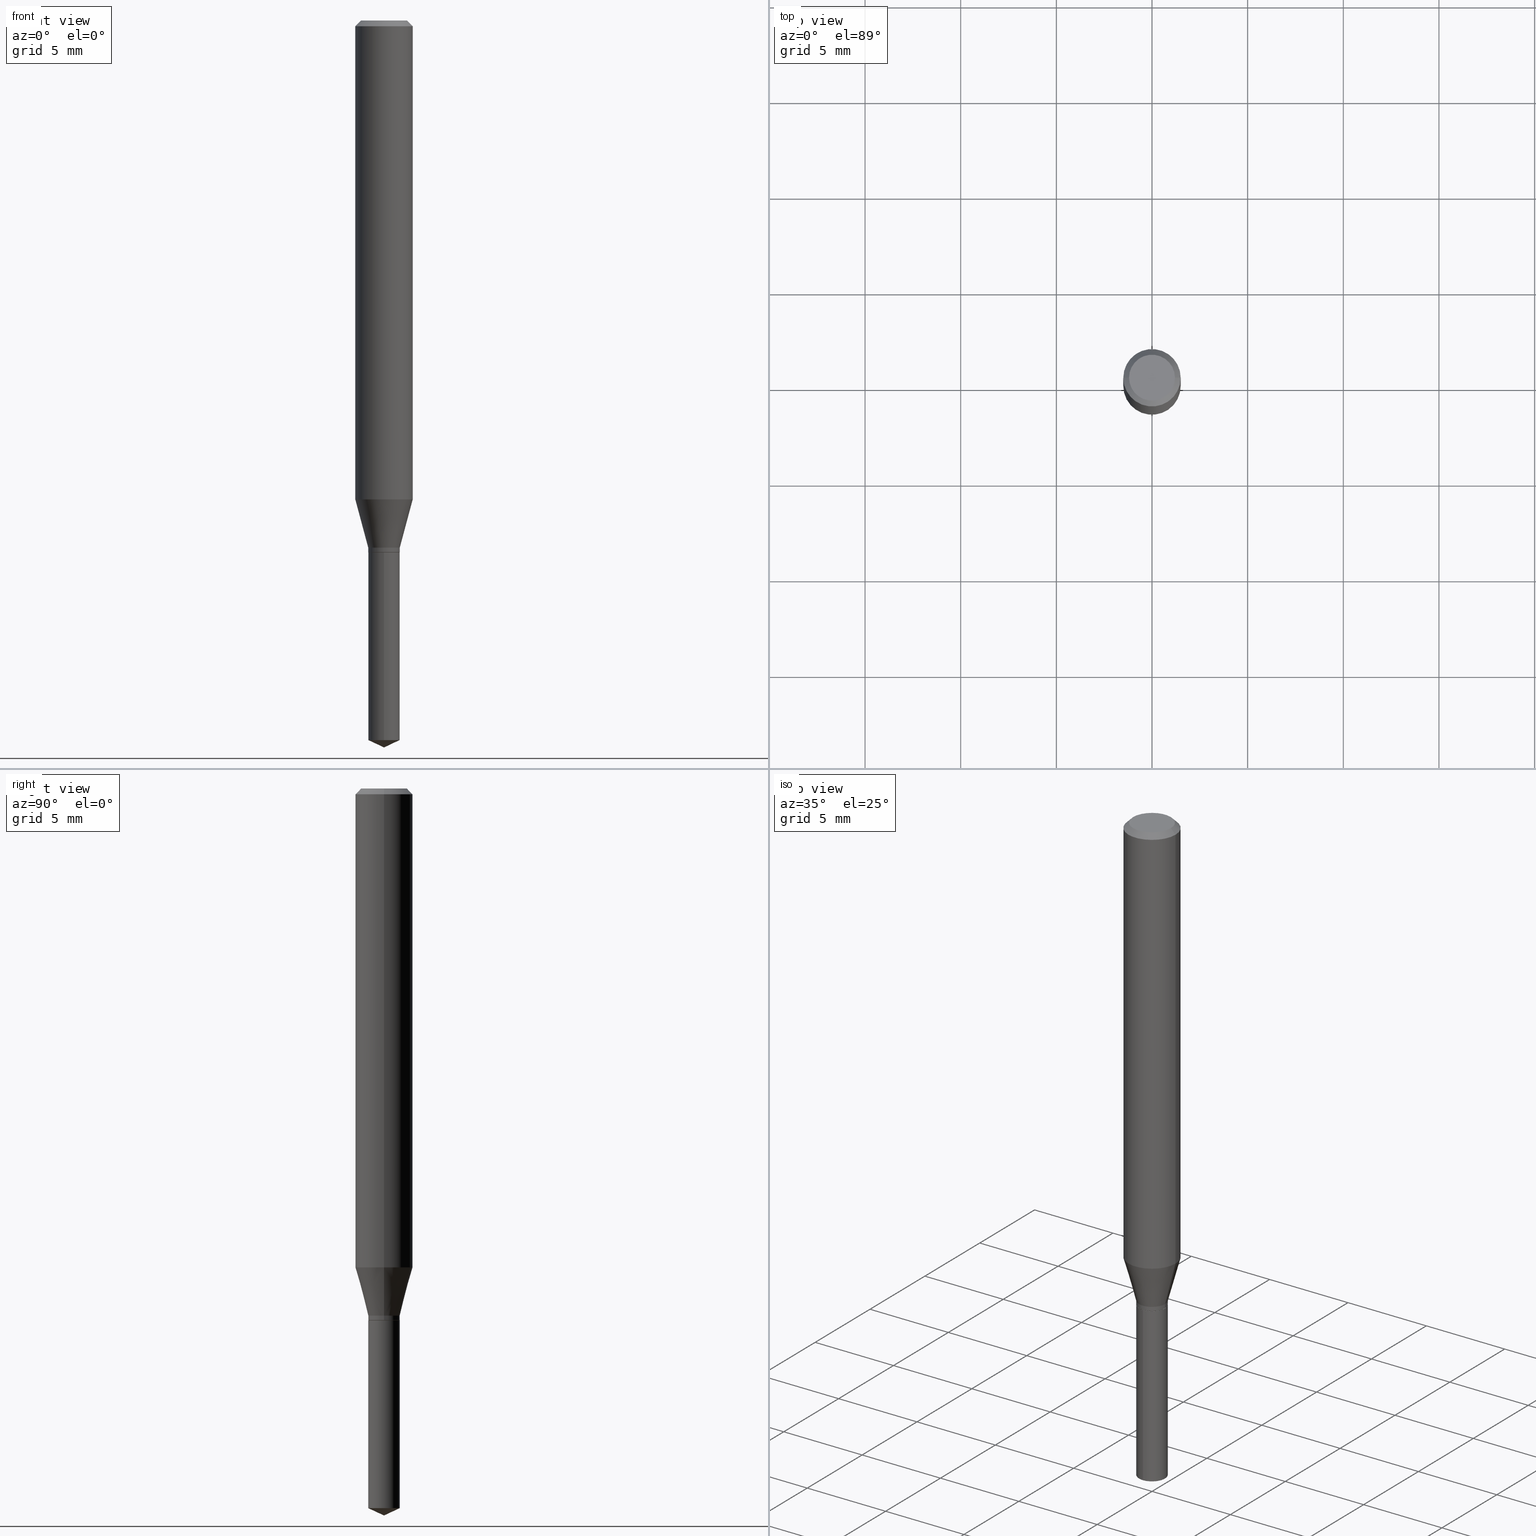
[diagram: canonical four-view strip — front | top / right | iso, engineering-drawing reading convention]
A machine part, canonical four-view strip (front | top / right | iso — engineering-drawing reading convention). The complete STEP part file that produces these views, byte-faithful:
ISO-10303-21;
HEADER;
FILE_DESCRIPTION (( 'STEP AP203' ),
    '1' );
FILE_NAME ('08355.STEP',
    '2024-04-24T14:33:10',
    ( '' ),
    ( '' ),
    'SwSTEP 2.0',
    'SolidWorks 2023',
    '' );
FILE_SCHEMA (( 'CONFIG_CONTROL_DESIGN' ));
ENDSEC;

DATA;
#1 = PERSON_AND_ORGANIZATION_ROLE ( 'design_owner' ) ;
#2 = DIRECTION ( 'NONE',  ( 1.000000000000000000, -6.982962677686266711E-15, 4.876185090822587894E-29 ) ) ;
#3 = CARTESIAN_POINT ( 'NONE',  ( 0.03249999999999998723, -4.014156095267963078E-15, -1.084699999999999998 ) ) ;
#4 = CARTESIAN_POINT ( 'NONE',  ( 3.621579269350513779E-29, -5.170728402142678552E-15, -1.480945001109962522 ) ) ;
#5 = CARTESIAN_POINT ( 'NONE',  ( 0.05905000000000006077, -4.123439461173744764E-16, 2.879382386107503023E-30 ) ) ;
#6 = PLANE ( 'NONE',  #231 ) ;
#7 = EDGE_CURVE ( 'NONE', #287, #37, #126, .T. ) ;
#8 = ORIENTED_EDGE ( 'NONE', *, *, #466, .T. ) ;
#9 = DIRECTION ( 'NONE',  ( -2.445468806185136877E-29, 3.491481338843145188E-15, 1.000000000000000000 ) ) ;
#10 = FACE_OUTER_BOUND ( 'NONE', #426, .T. ) ;
#11 = APPROVAL ( #402, 'UNSPECIFIED' ) ;
#12 = APPROVAL_STATUS ( 'not_yet_approved' ) ;
#13 = CIRCLE ( 'NONE', #406, 0.05905000000000011628 ) ;
#14 = AXIS2_PLACEMENT_3D ( 'NONE', #331, #188, #299 ) ;
#15 = EDGE_LOOP ( 'NONE', ( #179, #131, #409, #90 ) ) ;
#16 = SHAPE_DEFINITION_REPRESENTATION ( #487, #376 ) ;
#17 = ADVANCED_FACE ( 'NONE', ( #76 ), #235, .T. ) ;
#18 = CARTESIAN_POINT ( 'NONE',  ( 2.676565608369632355E-29, -3.821426325363822773E-15, -1.094500000000000028 ) ) ;
#19 = LINE ( 'NONE', #384, #175 ) ;
#20 = ORIENTED_EDGE ( 'NONE', *, *, #77, .T. ) ;
#21 = EDGE_CURVE ( 'NONE', #37, #287, #54, .T. ) ;
#22 = DIRECTION ( 'NONE',  ( -2.445468806185136597E-29, 3.491481338843145583E-15, 1.000000000000000000 ) ) ;
#23 = CARTESIAN_POINT ( 'NONE',  ( 8.265746106709734507E-48, -1.180129479067563789E-33, -3.380025165646692144E-19 ) ) ;
#24 = AXIS2_PLACEMENT_3D ( 'NONE', #78, #83, #48 ) ;
#25 = AXIS2_PLACEMENT_3D ( 'NONE', #63, #117, #225 ) ;
#26 = ORIENTED_EDGE ( 'NONE', *, *, #229, .T. ) ;
#27 = CARTESIAN_POINT ( 'NONE',  ( 2.676565608369631794E-29, -3.821426325363822773E-15, -1.094499999999999806 ) ) ;
#28 = VERTEX_POINT ( 'NONE', #195 ) ;
#29 = AXIS2_PLACEMENT_3D ( 'NONE', #388, #278, #35 ) ;
#30 = AXIS2_PLACEMENT_3D ( 'NONE', #96, #57, #306 ) ;
#31 = DIRECTION ( 'NONE',  ( -2.445402730703145379E-29, 3.491575962694140016E-15, 1.000000000000000000 ) ) ;
#32 = DIRECTION ( 'NONE',  ( -6.328713451373372534E-15, -0.9063077870366490485, 0.4226182617407011066 ) ) ;
#33 = ORIENTED_EDGE ( 'NONE', *, *, #326, .F. ) ;
#34 = ORIENTED_EDGE ( 'NONE', *, *, #158, .F. ) ;
#35 = DIRECTION ( 'NONE',  ( 1.000000000000000000, -6.982962677686266711E-15, 0.000000000000000000 ) ) ;
#36 = EDGE_CURVE ( 'NONE', #270, #246, #486, .T. ) ;
#37 = VERTEX_POINT ( 'NONE', #346 ) ;
#38 = VECTOR ( 'NONE', #107, 39.37007874015748143 ) ;
#39 = CARTESIAN_POINT ( 'NONE',  ( 0.000000000000000000, 0.000000000000000000, 0.000000000000000000 ) ) ;
#40 = ORIENTED_EDGE ( 'NONE', *, *, #53, .F. ) ;
#41 = CONICAL_SURFACE ( 'NONE', #164, 0.03249999999999998723, 0.2617993877991499074 ) ;
#42 = EDGE_CURVE ( 'NONE', #75, #37, #423, .T. ) ;
#43 = CARTESIAN_POINT ( 'NONE',  ( 4.132873053354867254E-48, -5.900647395337818946E-34, -1.690012582823346072E-19 ) ) ;
#44 = APPLICATION_CONTEXT ( 'configuration controlled 3d designs of mechanical parts and assemblies' ) ;
#45 = LINE ( 'NONE', #389, #215 ) ;
#46 = DIRECTION ( 'NONE',  ( 1.000000000000000000, -6.982962677686259611E-15, 0.000000000000000000 ) ) ;
#47 = ORIENTED_EDGE ( 'NONE', *, *, #229, .F. ) ;
#48 = DIRECTION ( 'NONE',  ( 1.000000000000000000, -6.982962677686261189E-15, 0.000000000000000000 ) ) ;
#49 = CARTESIAN_POINT ( 'NONE',  ( 2.676565608369632355E-29, -3.821426325363822773E-15, -1.094500000000000028 ) ) ;
#50 = ORIENTED_EDGE ( 'NONE', *, *, #128, .T. ) ;
#51 = CARTESIAN_POINT ( 'NONE',  ( 2.410288416802661241E-29, -3.441253066574253877E-15, -0.9856140510590458703 ) ) ;
#52 = ORIENTED_EDGE ( 'NONE', *, *, #42, .F. ) ;
#53 = EDGE_CURVE ( 'NONE', #411, #254, #393, .T. ) ;
#54 = CIRCLE ( 'NONE', #29, 0.05904999999999999832 ) ;
#55 = CONICAL_SURFACE ( 'NONE', #468, 84.42940631927430672, 1.134464013796315784 ) ;
#56 = CARTESIAN_POINT ( 'NONE',  ( -0.04724000000000000421, 3.504923541997677355E-16, -3.380025165670481712E-19 ) ) ;
#57 = DIRECTION ( 'NONE',  ( -2.445468806185136597E-29, 3.491481338843145583E-15, 1.000000000000000000 ) ) ;
#58 =( LENGTH_UNIT ( ) NAMED_UNIT ( * ) SI_UNIT ( $, .METRE. ) );
#59 = COORDINATED_UNIVERSAL_TIME_OFFSET ( 5, 0, .BEHIND. ) ;
#60 = VECTOR ( 'NONE', #115, 39.37007874015748143 ) ;
#61 = CALENDAR_DATE ( 2024, 24, 4 ) ;
#62 = CARTESIAN_POINT ( 'NONE',  ( 2.410288416802661241E-29, -3.441253066574253877E-15, -0.9856140510590458703 ) ) ;
#63 = CARTESIAN_POINT ( 'NONE',  ( 2.675342873966538993E-29, -3.819680584694400481E-15, -1.093999999999999861 ) ) ;
#64 = PERSON ( 'UNSPECIFIED', 'UNSPECIFIED', 'UNSPECIFIED', ('UNSPECIFIED'), ('UNSPECIFIED'), ('UNSPECIFIED') ) ;
#65 = EDGE_LOOP ( 'NONE', ( #134, #20, #34, #351 ) ) ;
#66 = FACE_OUTER_BOUND ( 'NONE', #476, .T. ) ;
#67 = EDGE_CURVE ( 'NONE', #254, #75, #85, .T. ) ;
#68 = CARTESIAN_POINT ( 'NONE',  ( 2.888098660104664204E-31, -4.123439461173780263E-17, -0.01181000000000007218 ) ) ;
#69 = AXIS2_PLACEMENT_3D ( 'NONE', #342, #86, #282 ) ;
#70 = DIRECTION ( 'NONE',  ( 0.000000000000000000, 0.000000000000000000, 1.000000000000000000 ) ) ;
#71 = ADVANCED_FACE ( 'NONE', ( #414 ), #382, .F. ) ;
#72 = APPROVAL_PERSON_ORGANIZATION ( #266, #390, #324 ) ;
#73 = APPROVAL_STATUS ( 'not_yet_approved' ) ;
#74 = DIRECTION ( 'NONE',  ( -2.445402730703145379E-29, 3.491575962694140016E-15, 1.000000000000000000 ) ) ;
#75 = VERTEX_POINT ( 'NONE', #275 ) ;
#76 = FACE_OUTER_BOUND ( 'NONE', #205, .T. ) ;
#77 = EDGE_CURVE ( 'NONE', #411, #427, #19, .T. ) ;
#78 = CARTESIAN_POINT ( 'NONE',  ( 2.652600014069017258E-29, -3.787209808243159726E-15, -1.084699999999999998 ) ) ;
#79 = DIRECTION ( 'NONE',  ( -2.445402730703145379E-29, 3.491575962694140016E-15, 1.000000000000000000 ) ) ;
#80 = ORIENTED_EDGE ( 'NONE', *, *, #440, .F. ) ;
#81 = VECTOR ( 'NONE', #234, 39.37007874015748143 ) ;
#82 = PRODUCT_DEFINITION ( 'UNKNOWN', '', #458, #114 ) ;
#83 = DIRECTION ( 'NONE',  ( -2.445468806185136597E-29, 3.491481338843145583E-15, 1.000000000000000000 ) ) ;
#84 = CARTESIAN_POINT ( 'NONE',  ( 0.000000000000000000, 0.000000000000000000, 0.000000000000000000 ) ) ;
#85 = LINE ( 'NONE', #3, #181 ) ;
#86 = DIRECTION ( 'NONE',  ( 2.445468806185136597E-29, -3.491481338843145583E-15, -1.000000000000000000 ) ) ;
#87 = EDGE_CURVE ( 'NONE', #270, #436, #399, .T. ) ;
#88 = ORIENTED_EDGE ( 'NONE', *, *, #358, .F. ) ;
#89 = DIRECTION ( 'NONE',  ( -2.445468806185136597E-29, 3.491481338843145583E-15, 1.000000000000000000 ) ) ;
#90 = ORIENTED_EDGE ( 'NONE', *, *, #413, .F. ) ;
#91 = VERTEX_POINT ( 'NONE', #56 ) ;
#92 = AXIS2_PLACEMENT_3D ( 'NONE', #233, #255, #286 ) ;
#93 = FACE_OUTER_BOUND ( 'NONE', #65, .T. ) ;
#94 = DIRECTION ( 'NONE',  ( 1.000000000000000000, -6.982962677686273021E-15, 0.000000000000000000 ) ) ;
#95 = ORIENTED_EDGE ( 'NONE', *, *, #303, .T. ) ;
#96 = CARTESIAN_POINT ( 'NONE',  ( 0.000000000000000000, 0.000000000000000000, 0.000000000000000000 ) ) ;
#97 = COORDINATED_UNIVERSAL_TIME_OFFSET ( 5, 0, .BEHIND. ) ;
#98 = EDGE_LOOP ( 'NONE', ( #160, #483 ) ) ;
#99 = ORIENTED_EDGE ( 'NONE', *, *, #36, .F. ) ;
#100 = AXIS2_PLACEMENT_3D ( 'NONE', #49, #471, #162 ) ;
#101 = AXIS2_PLACEMENT_3D ( 'NONE', #62, #290, #214 ) ;
#102 = DATE_AND_TIME ( #177, #320 ) ;
#103 = DIRECTION ( 'NONE',  ( -0.7071067811864267805, 7.493145998869918709E-15, 0.7071067811866682540 ) ) ;
#104 = ADVANCED_FACE ( 'NONE', ( #355 ), #477, .T. ) ;
#105 = ORIENTED_EDGE ( 'NONE', *, *, #294, .T. ) ;
#106 = FACE_OUTER_BOUND ( 'NONE', #424, .T. ) ;
#107 = DIRECTION ( 'NONE',  ( 0.7071067811865453523, -7.319954787623248157E-15, -0.7071067811865496822 ) ) ;
#108 = CARTESIAN_POINT ( 'NONE',  ( -0.03249999999999998723, -3.572518807346747732E-15, -1.084699999999999998 ) ) ;
#109 = CIRCLE ( 'NONE', #482, 0.03199999999999999373 ) ;
#110 = DIRECTION ( 'NONE',  ( -2.445468806185136597E-29, 3.491481338843145583E-15, 1.000000000000000000 ) ) ;
#111 = APPROVAL_PERSON_ORGANIZATION ( #362, #459, #203 ) ;
#112 = CARTESIAN_POINT ( 'NONE',  ( -9.261705871415894043E-28, 1.322399773465276608E-13, 37.87397874015748300 ) ) ;
#113 = CARTESIAN_POINT ( 'NONE',  ( -0.05904999999999999832, -1.321668245126655521E-15, -0.01181000000000007218 ) ) ;
#114 = DESIGN_CONTEXT ( 'detailed design', #310, 'design' ) ;
#115 = DIRECTION ( 'NONE',  ( -2.445468806185136877E-29, 3.491481338843145188E-15, 1.000000000000000000 ) ) ;
#116 = CC_DESIGN_DATE_AND_TIME_ASSIGNMENT ( #102, #439, ( #82 ) ) ;
#117 = DIRECTION ( 'NONE',  ( -2.445468806185136597E-29, 3.491481338843145583E-15, 1.000000000000000000 ) ) ;
#118 = MECHANICAL_CONTEXT ( 'NONE', #44, 'mechanical' ) ;
#119 = LOCAL_TIME ( 10, 33, 10.00000000000000000, #154 ) ;
#120 = FACE_OUTER_BOUND ( 'NONE', #163, .T. ) ;
#121 = DIRECTION ( 'NONE',  ( -2.445402730703145379E-29, 3.491575962694140016E-15, 1.000000000000000000 ) ) ;
#122 = ORIENTED_EDGE ( 'NONE', *, *, #474, .F. ) ;
#123 = DIRECTION ( 'NONE',  ( -1.000000000000000000, 6.982962677686265922E-15, -4.876176775795935793E-29 ) ) ;
#124 = DIRECTION ( 'NONE',  ( -2.445468806185136597E-29, 3.491481338843145583E-15, 1.000000000000000000 ) ) ;
#125 = ORIENTED_EDGE ( 'NONE', *, *, #244, .T. ) ;
#126 = CIRCLE ( 'NONE', #237, 0.05904999999999999832 ) ;
#127 = CIRCLE ( 'NONE', #259, 0.03250000000000000111 ) ;
#128 = EDGE_CURVE ( 'NONE', #246, #254, #396, .T. ) ;
#129 = DIRECTION ( 'NONE',  ( 6.439704144417028775E-15, 0.9063077870366521571, 0.4226182617406948894 ) ) ;
#130 = CARTESIAN_POINT ( 'NONE',  ( 0.03249999999999998723, -2.269462870248035991E-16, 1.584757452133678642E-30 ) ) ;
#131 = ORIENTED_EDGE ( 'NONE', *, *, #209, .T. ) ;
#132 = DIRECTION ( 'NONE',  ( -2.445402730703145379E-29, 3.491575962694140016E-15, 1.000000000000000000 ) ) ;
#133 = DIRECTION ( 'NONE',  ( -2.445468806185136597E-29, 3.491481338843145583E-15, 1.000000000000000000 ) ) ;
#134 = ORIENTED_EDGE ( 'NONE', *, *, #474, .T. ) ;
#135 = CYLINDRICAL_SURFACE ( 'NONE', #443, 0.05905000000000006077 ) ;
#136 = ORIENTED_EDGE ( 'NONE', *, *, #289, .F. ) ;
#137 = AXIS2_PLACEMENT_3D ( 'NONE', #43, #200, #123 ) ;
#138 = CONICAL_SURFACE ( 'NONE', #291, 84.42940631927430672, 1.134464013796315784 ) ;
#139 = CARTESIAN_POINT ( 'NONE',  ( 0.000000000000000000, 0.000000000000000000, 0.000000000000000000 ) ) ;
#140 = EDGE_CURVE ( 'NONE', #246, #281, #258, .T. ) ;
#141 = ORIENTED_EDGE ( 'NONE', *, *, #7, .F. ) ;
#142 = ORIENTED_EDGE ( 'NONE', *, *, #410, .F. ) ;
#143 = ADVANCED_FACE ( 'NONE', ( #280 ), #6, .F. ) ;
#144 = PERSON_AND_ORGANIZATION ( #64, #418 ) ;
#145 = DATE_AND_TIME ( #260, #198 ) ;
#146 = DIRECTION ( 'NONE',  ( -6.982962677686265922E-15, -1.000000000000000000, 4.202843067175789324E-15 ) ) ;
#147 = LINE ( 'NONE', #297, #264 ) ;
#148 = CONICAL_SURFACE ( 'NONE', #69, 0.05904999999999999832, 0.7853981633974452814 ) ;
#149 = AXIS2_PLACEMENT_3D ( 'NONE', #336, #296, #222 ) ;
#150 = LINE ( 'NONE', #301, #60 ) ;
#151 = ORIENTED_EDGE ( 'NONE', *, *, #410, .T. ) ;
#152 = EDGE_CURVE ( 'NONE', #182, #333, #45, .T. ) ;
#153 = SECURITY_CLASSIFICATION_LEVEL ( 'unclassified' ) ;
#154 = COORDINATED_UNIVERSAL_TIME_OFFSET ( 5, 0, .BEHIND. ) ;
#155 = ADVANCED_FACE ( 'NONE', ( #415 ), #148, .T. ) ;
#156 = APPLICATION_PROTOCOL_DEFINITION ( 'international standard', 'config_control_design', 1994, #310 ) ;
#157 = CC_DESIGN_SECURITY_CLASSIFICATION ( #207, ( #458 ) ) ;
#158 = EDGE_CURVE ( 'NONE', #75, #427, #13, .T. ) ;
#159 = DIRECTION ( 'NONE',  ( -2.445468806185136597E-29, 3.491481338843145583E-15, 1.000000000000000000 ) ) ;
#160 = ORIENTED_EDGE ( 'NONE', *, *, #87, .F. ) ;
#161 =( NAMED_UNIT ( * ) PLANE_ANGLE_UNIT ( ) SI_UNIT ( $, .RADIAN. ) );
#162 = DIRECTION ( 'NONE',  ( 1.000000000000000000, -6.982962677686273021E-15, 0.000000000000000000 ) ) ;
#163 = EDGE_LOOP ( 'NONE', ( #398, #8, #122, #323 ) ) ;
#164 = AXIS2_PLACEMENT_3D ( 'NONE', #312, #350, #167 ) ;
#165 = CC_DESIGN_APPROVAL ( #11, ( #458 ) ) ;
#166 = DIRECTION ( 'NONE',  ( -2.445468806185136877E-29, 3.491481338843145188E-15, 1.000000000000000000 ) ) ;
#167 = DIRECTION ( 'NONE',  ( 1.000000000000000000, -6.982962677686261189E-15, 0.000000000000000000 ) ) ;
#168 = ORIENTED_EDGE ( 'NONE', *, *, #303, .F. ) ;
#169 = CARTESIAN_POINT ( 'NONE',  ( -5.857955915931559368E-30, -8.493313245778723413E-15, -1.094500000000000028 ) ) ;
#170 = DIRECTION ( 'NONE',  ( -0.7071067811865453523, 2.468850131082234184E-15, -0.7071067811865496822 ) ) ;
#171 = CALENDAR_DATE ( 2024, 24, 4 ) ;
#172 = CARTESIAN_POINT ( 'NONE',  ( -2.269462870247674594E-16, -0.03250000000000517059, -1.480945001109962522 ) ) ;
#173 = EDGE_CURVE ( 'NONE', #186, #28, #196, .T. ) ;
#174 = DIRECTION ( 'NONE',  ( -6.982962677686265922E-15, -1.000000000000000000, 0.000000000000000000 ) ) ;
#175 = VECTOR ( 'NONE', #253, 39.37007874015748854 ) ;
#176 = CONICAL_SURFACE ( 'NONE', #267, 0.03199999999999999373, 0.7853981633972775267 ) ;
#177 = CALENDAR_DATE ( 2024, 24, 4 ) ;
#178 = ADVANCED_FACE ( 'NONE', ( #463 ), #135, .T. ) ;
#179 = ORIENTED_EDGE ( 'NONE', *, *, #294, .F. ) ;
#180 = CARTESIAN_POINT ( 'NONE',  ( 3.658567025404975087E-29, -5.223746797786701947E-15, -1.496099999999999985 ) ) ;
#181 = VECTOR ( 'NONE', #236, 39.37007874015748854 ) ;
#182 = VERTEX_POINT ( 'NONE', #425 ) ;
#183 = AXIS2_PLACEMENT_3D ( 'NONE', #68, #217, #332 ) ;
#184 = CC_DESIGN_APPROVAL ( #390, ( #82 ) ) ;
#185 = DIRECTION ( 'NONE',  ( -2.445402730703145379E-29, 3.491575962694140016E-15, 1.000000000000000000 ) ) ;
#186 = VERTEX_POINT ( 'NONE', #245 ) ;
#187 = CYLINDRICAL_SURFACE ( 'NONE', #14, 0.03250000000000000111 ) ;
#188 = DIRECTION ( 'NONE',  ( -2.445402730703145379E-29, 3.491575962694140016E-15, 1.000000000000000000 ) ) ;
#189 = ORIENTED_EDGE ( 'NONE', *, *, #152, .T. ) ;
#190 = PERSON_AND_ORGANIZATION ( #64, #418 ) ;
#191 = CLOSED_SHELL ( 'NONE', ( #444, #193, #400, #298, #431 ) ) ;
#192 = AXIS2_PLACEMENT_3D ( 'NONE', #139, #22, #428 ) ;
#193 = ADVANCED_FACE ( 'NONE', ( #241 ), #55, .T. ) ;
#194 = ORIENTED_EDGE ( 'NONE', *, *, #272, .F. ) ;
#195 = CARTESIAN_POINT ( 'NONE',  ( -2.269462870247768764E-16, -0.03250000000000381750, -1.094499999999999806 ) ) ;
#196 = CIRCLE ( 'NONE', #262, 0.03250000000000000111 ) ;
#197 = ORIENTED_EDGE ( 'NONE', *, *, #21, .F. ) ;
#198 = LOCAL_TIME ( 10, 33, 10.00000000000000000, #59 ) ;
#199 = CARTESIAN_POINT ( 'NONE',  ( -0.03250000000000000111, -3.572518807346747732E-15, -1.093999999999999861 ) ) ;
#200 = DIRECTION ( 'NONE',  ( 2.438088387897960049E-29, -3.491481338843145188E-15, -1.000000000000000000 ) ) ;
#201 = EDGE_LOOP ( 'NONE', ( #194, #242, #385, #168 ) ) ;
#202 = UNCERTAINTY_MEASURE_WITH_UNIT (LENGTH_MEASURE( 1.000000000000000082E-05 ), #429, 'distance_accuracy_value', 'NONE');
#203 = APPROVAL_ROLE ( '' ) ;
#204 = DIRECTION ( 'NONE',  ( 1.000000000000000000, -6.982962677686273021E-15, 0.000000000000000000 ) ) ;
#205 = EDGE_LOOP ( 'NONE', ( #238, #422, #392, #141 ) ) ;
#206 = VECTOR ( 'NONE', #170, 39.37007874015748143 ) ;
#207 = SECURITY_CLASSIFICATION ( '', '', #153 ) ;
#208 = CARTESIAN_POINT ( 'NONE',  ( 2.676565608369631794E-29, -3.821426325363822773E-15, -1.094499999999999806 ) ) ;
#209 = EDGE_CURVE ( 'NONE', #436, #270, #109, .T. ) ;
#210 = CARTESIAN_POINT ( 'NONE',  ( 2.676565608369631794E-29, -3.821426325363822773E-15, -1.094499999999999806 ) ) ;
#211 = COORDINATED_UNIVERSAL_TIME_OFFSET ( 5, 0, .BEHIND. ) ;
#212 = CARTESIAN_POINT ( 'NONE',  ( 0.03199999999999999373, -4.044881131049783908E-15, -1.094500000000000028 ) ) ;
#213 = PERSON_AND_ORGANIZATION_ROLE ( 'creator' ) ;
#214 = DIRECTION ( 'NONE',  ( 1.000000000000000000, -6.982962677686266711E-15, 0.000000000000000000 ) ) ;
#215 = VECTOR ( 'NONE', #129, 39.37007874015748854 ) ;
#216 = CONICAL_SURFACE ( 'NONE', #92, 0.03249999999999998723, 0.2617993877991499074 ) ;
#217 = DIRECTION ( 'NONE',  ( 2.445468806185136597E-29, -3.491481338843145583E-15, -1.000000000000000000 ) ) ;
#218 = APPROVAL_DATE_TIME ( #363, #11 ) ;
#219 = CC_DESIGN_DATE_AND_TIME_ASSIGNMENT ( #250, #438, ( #207 ) ) ;
#220 = LINE ( 'NONE', #447, #375 ) ;
#221 = ORIENTED_EDGE ( 'NONE', *, *, #272, .T. ) ;
#222 = DIRECTION ( 'NONE',  ( 6.982962677686265922E-15, 1.000000000000000000, -3.491575962694140016E-15 ) ) ;
#223 = PRODUCT ( '08355', '08355', '', ( #118 ) ) ;
#224 = CARTESIAN_POINT ( 'NONE',  ( 0.04724000000000000421, -3.852183633974369345E-16, -3.380025165621689721E-19 ) ) ;
#225 = DIRECTION ( 'NONE',  ( 1.000000000000000000, -6.982962677686259611E-15, 0.000000000000000000 ) ) ;
#226 = VERTEX_POINT ( 'NONE', #172 ) ;
#227 = AXIS2_PLACEMENT_3D ( 'NONE', #39, #70, #408 ) ;
#228 = DIRECTION ( 'NONE',  ( -2.445402730703145379E-29, 3.491575962694140016E-15, 1.000000000000000000 ) ) ;
#229 = EDGE_CURVE ( 'NONE', #333, #186, #252, .T. ) ;
#230 = PERSON_AND_ORGANIZATION_ROLE ( 'creator' ) ;
#231 = AXIS2_PLACEMENT_3D ( 'NONE', #169, #315, #470 ) ;
#232 = EDGE_CURVE ( 'NONE', #333, #226, #349, .T. ) ;
#233 = CARTESIAN_POINT ( 'NONE',  ( 2.652600014069017258E-29, -3.787209808243159726E-15, -1.084699999999999998 ) ) ;
#234 = DIRECTION ( 'NONE',  ( -2.445468806185136877E-29, 3.491481338843145188E-15, 1.000000000000000000 ) ) ;
#235 = CYLINDRICAL_SURFACE ( 'NONE', #481, 0.05905000000000006077 ) ;
#236 = DIRECTION ( 'NONE',  ( 0.2588190451025211836, 1.565188264969622559E-15, 0.9659258262890679791 ) ) ;
#237 = AXIS2_PLACEMENT_3D ( 'NONE', #268, #461, #271 ) ;
#238 = ORIENTED_EDGE ( 'NONE', *, *, #314, .F. ) ;
#239 = DIRECTION ( 'NONE',  ( 1.000000000000000000, -6.982962677686266711E-15, 4.876176775795935793E-29 ) ) ;
#240 = ADVANCED_FACE ( 'NONE', ( #120 ), #465, .T. ) ;
#241 = FACE_OUTER_BOUND ( 'NONE', #472, .T. ) ;
#242 = ORIENTED_EDGE ( 'NONE', *, *, #440, .T. ) ;
#243 =( NAMED_UNIT ( * ) SI_UNIT ( $, .STERADIAN. ) SOLID_ANGLE_UNIT ( ) );
#244 = EDGE_CURVE ( 'NONE', #28, #186, #430, .T. ) ;
#245 = CARTESIAN_POINT ( 'NONE',  ( 2.309263891220687573E-16, 0.03249999999999617778, -1.094500000000000028 ) ) ;
#246 = VERTEX_POINT ( 'NONE', #340 ) ;
#247 = ADVANCED_FACE ( 'NONE', ( #93 ), #216, .T. ) ;
#248 = AXIS2_PLACEMENT_3D ( 'NONE', #256, #89, #273 ) ;
#249 = ORIENTED_EDGE ( 'NONE', *, *, #454, .T. ) ;
#250 = DATE_AND_TIME ( #171, #119 ) ;
#251 = FACE_OUTER_BOUND ( 'NONE', #489, .T. ) ;
#252 = LINE ( 'NONE', #462, #305 ) ;
#253 = DIRECTION ( 'NONE',  ( -0.2588190451025211836, 5.211531920934547886E-15, 0.9659258262890679791 ) ) ;
#254 = VERTEX_POINT ( 'NONE', #397 ) ;
#255 = DIRECTION ( 'NONE',  ( -2.445468806185136597E-29, 3.491481338843145583E-15, 1.000000000000000000 ) ) ;
#256 = CARTESIAN_POINT ( 'NONE',  ( 2.652600014069017258E-29, -3.787209808243159726E-15, -1.084699999999999998 ) ) ;
#257 = ADVANCED_FACE ( 'NONE', ( #251 ), #433, .T. ) ;
#258 = CIRCLE ( 'NONE', #367, 0.03249999999999999417 ) ;
#259 = AXIS2_PLACEMENT_3D ( 'NONE', #4, #121, #416 ) ;
#260 = CALENDAR_DATE ( 2024, 24, 4 ) ;
#261 = DIRECTION ( 'NONE',  ( -2.445468806185136597E-29, 3.491481338843145583E-15, 1.000000000000000000 ) ) ;
#262 = AXIS2_PLACEMENT_3D ( 'NONE', #208, #132, #420 ) ;
#263 = CARTESIAN_POINT ( 'NONE',  ( -0.05905000000000011628, -3.021677581107914384E-15, -0.9856140510590458703 ) ) ;
#264 = VECTOR ( 'NONE', #448, 39.37007874015748143 ) ;
#265 = DIRECTION ( 'NONE',  ( 1.000000000000000000, -6.982962677686266711E-15, 4.876185090822587894E-29 ) ) ;
#266 = PERSON_AND_ORGANIZATION ( #64, #418 ) ;
#267 = AXIS2_PLACEMENT_3D ( 'NONE', #322, #261, #404 ) ;
#268 = CARTESIAN_POINT ( 'NONE',  ( 2.888098660104664204E-31, -4.123439461173780263E-17, -0.01181000000000007218 ) ) ;
#269 = DIRECTION ( 'NONE',  ( 0.7071067811864267805, -2.468850131080992517E-15, 0.7071067811866682540 ) ) ;
#270 = VERTEX_POINT ( 'NONE', #212 ) ;
#271 = DIRECTION ( 'NONE',  ( 1.000000000000000000, -6.982962677686266711E-15, 0.000000000000000000 ) ) ;
#272 = EDGE_CURVE ( 'NONE', #394, #91, #284, .T. ) ;
#273 = DIRECTION ( 'NONE',  ( 1.000000000000000000, -6.982962677686261189E-15, 0.000000000000000000 ) ) ;
#274 =( GEOMETRIC_REPRESENTATION_CONTEXT ( 3 ) GLOBAL_UNCERTAINTY_ASSIGNED_CONTEXT ( ( #202 ) ) GLOBAL_UNIT_ASSIGNED_CONTEXT ( ( #429, #161, #243 ) ) REPRESENTATION_CONTEXT ( 'NONE', 'WORKASPACE' ) );
#275 = CARTESIAN_POINT ( 'NONE',  ( 0.05905000000000011628, -3.853597012691628798E-15, -0.9856140510590458703 ) ) ;
#276 = CARTESIAN_POINT ( 'NONE',  ( -0.05904999999999999832, 3.711095515056362547E-16, -0.01181000000000007218 ) ) ;
#277 = ORIENTED_EDGE ( 'NONE', *, *, #314, .T. ) ;
#278 = DIRECTION ( 'NONE',  ( -2.445468806185136597E-29, 3.491481338843145583E-15, 1.000000000000000000 ) ) ;
#279 = DIRECTION ( 'NONE',  ( 1.000000000000000000, -6.982962677686266711E-15, 4.876176775795935793E-29 ) ) ;
#280 = FACE_OUTER_BOUND ( 'NONE', #98, .T. ) ;
#281 = VERTEX_POINT ( 'NONE', #199 ) ;
#282 = DIRECTION ( 'NONE',  ( -1.000000000000000000, 6.982962677686266711E-15, 0.000000000000000000 ) ) ;
#283 = CARTESIAN_POINT ( 'NONE',  ( 2.675342873966538993E-29, -3.819680584694400481E-15, -1.093999999999999861 ) ) ;
#284 = CIRCLE ( 'NONE', #368, 0.04724000000000000421 ) ;
#285 = ORIENTED_EDGE ( 'NONE', *, *, #173, .T. ) ;
#286 = DIRECTION ( 'NONE',  ( 1.000000000000000000, -6.982962677686261189E-15, 0.000000000000000000 ) ) ;
#287 = VERTEX_POINT ( 'NONE', #113 ) ;
#288 = COORDINATED_UNIVERSAL_TIME_OFFSET ( 5, 0, .BEHIND. ) ;
#289 = EDGE_CURVE ( 'NONE', #427, #75, #335, .T. ) ;
#290 = DIRECTION ( 'NONE',  ( -2.445468806185136597E-29, 3.491481338843145583E-15, 1.000000000000000000 ) ) ;
#291 = AXIS2_PLACEMENT_3D ( 'NONE', #112, #185, #329 ) ;
#292 = CC_DESIGN_APPROVAL ( #459, ( #207 ) ) ;
#293 = ORIENTED_EDGE ( 'NONE', *, *, #140, .F. ) ;
#294 = EDGE_CURVE ( 'NONE', #436, #281, #220, .T. ) ;
#295 = APPROVAL_ROLE ( '' ) ;
#296 = DIRECTION ( 'NONE',  ( 2.445402730703145099E-29, -3.491575962694140016E-15, -1.000000000000000000 ) ) ;
#297 = CARTESIAN_POINT ( 'NONE',  ( -2.269462870247768764E-16, -0.03250000000000381750, -1.094499999999999806 ) ) ;
#298 = ADVANCED_FACE ( 'NONE', ( #66 ), #401, .T. ) ;
#299 = DIRECTION ( 'NONE',  ( -6.982962677686265922E-15, -1.000000000000000000, 4.202843067175789324E-15 ) ) ;
#300 = AXIS2_PLACEMENT_3D ( 'NONE', #407, #228, #174 ) ;
#301 = CARTESIAN_POINT ( 'NONE',  ( -0.03249999999999998723, 2.309263891220324697E-16, -1.598653904332844057E-30 ) ) ;
#302 = EDGE_LOOP ( 'NONE', ( #307, #26, #371, #142 ) ) ;
#303 = EDGE_CURVE ( 'NONE', #91, #287, #341, .T. ) ;
#304 = PERSON_AND_ORGANIZATION ( #64, #418 ) ;
#305 = VECTOR ( 'NONE', #79, 39.37007874015748143 ) ;
#306 = DIRECTION ( 'NONE',  ( 1.000000000000000000, -6.982962677686267499E-15, 4.876176775795936353E-29 ) ) ;
#307 = ORIENTED_EDGE ( 'NONE', *, *, #326, .T. ) ;
#308 = DIMENSIONAL_EXPONENTS ( 1.000000000000000000, 0.000000000000000000, 0.000000000000000000, 0.000000000000000000, 0.000000000000000000, 0.000000000000000000, 0.000000000000000000 ) ;
#309 = DIRECTION ( 'NONE',  ( -2.445402730703145379E-29, 3.491575962694140016E-15, 1.000000000000000000 ) ) ;
#310 = APPLICATION_CONTEXT ( 'configuration controlled 3d designs of mechanical parts and assemblies' ) ;
#311 = ORIENTED_EDGE ( 'NONE', *, *, #232, .F. ) ;
#312 = CARTESIAN_POINT ( 'NONE',  ( 2.652600014069017258E-29, -3.787209808243159726E-15, -1.084699999999999998 ) ) ;
#313 = ORIENTED_EDGE ( 'NONE', *, *, #454, .F. ) ;
#314 = EDGE_CURVE ( 'NONE', #427, #287, #318, .T. ) ;
#315 = DIRECTION ( 'NONE',  ( -2.438088387897960049E-29, 3.491481338843145188E-15, 1.000000000000000000 ) ) ;
#316 = LINE ( 'NONE', #180, #383 ) ;
#317 = DIRECTION ( 'NONE',  ( -2.445468806185136597E-29, 3.491481338843145583E-15, 1.000000000000000000 ) ) ;
#318 = LINE ( 'NONE', #391, #81 ) ;
#319 = AXIS2_PLACEMENT_3D ( 'NONE', #449, #110, #265 ) ;
#320 = LOCAL_TIME ( 10, 33, 10.00000000000000000, #288 ) ;
#321 = APPROVAL_DATE_TIME ( #145, #390 ) ;
#322 = CARTESIAN_POINT ( 'NONE',  ( 2.676565608369632355E-29, -3.821426325363822773E-15, -1.094500000000000028 ) ) ;
#323 = ORIENTED_EDGE ( 'NONE', *, *, #128, .F. ) ;
#324 = APPROVAL_ROLE ( '' ) ;
#325 = VECTOR ( 'NONE', #269, 39.37007874015748143 ) ;
#326 = EDGE_CURVE ( 'NONE', #226, #333, #127, .T. ) ;
#327 = ORIENTED_EDGE ( 'NONE', *, *, #232, .T. ) ;
#328 = LINE ( 'NONE', #446, #38 ) ;
#329 = DIRECTION ( 'NONE',  ( -6.982962677686268288E-15, -1.000000000000000000, 3.520397390770455053E-15 ) ) ;
#330 = ORIENTED_EDGE ( 'NONE', *, *, #466, .F. ) ;
#331 = CARTESIAN_POINT ( 'NONE',  ( 2.676565608369631794E-29, -3.821426325363822773E-15, -1.094499999999999806 ) ) ;
#332 = DIRECTION ( 'NONE',  ( -1.000000000000000000, 6.982962677686266711E-15, 0.000000000000000000 ) ) ;
#333 = VERTEX_POINT ( 'NONE', #421 ) ;
#334 = ADVANCED_FACE ( 'NONE', ( #10 ), #41, .T. ) ;
#335 = CIRCLE ( 'NONE', #101, 0.05905000000000011628 ) ;
#336 = CARTESIAN_POINT ( 'NONE',  ( 2.676565608369631794E-29, -3.821426325363822773E-15, -1.094499999999999806 ) ) ;
#337 = PERSON_AND_ORGANIZATION_ROLE ( 'classification_officer' ) ;
#338 = PERSON_AND_ORGANIZATION ( #64, #418 ) ;
#339 = CARTESIAN_POINT ( 'NONE',  ( 0.03199999999999999373, -4.044881131049783908E-15, -1.094500000000000028 ) ) ;
#340 = CARTESIAN_POINT ( 'NONE',  ( 0.03249999999999999417, -4.046626871719203833E-15, -1.093999999999999861 ) ) ;
#341 = LINE ( 'NONE', #276, #206 ) ;
#342 = CARTESIAN_POINT ( 'NONE',  ( 2.888098660104664204E-31, -4.123439461173780263E-17, -0.01181000000000007218 ) ) ;
#343 = CC_DESIGN_PERSON_AND_ORGANIZATION_ASSIGNMENT ( #378, #337, ( #207 ) ) ;
#344 = DIRECTION ( 'NONE',  ( -6.982962677686265922E-15, -1.000000000000000000, 4.202843067175789324E-15 ) ) ;
#345 = ORIENTED_EDGE ( 'NONE', *, *, #77, .F. ) ;
#346 = CARTESIAN_POINT ( 'NONE',  ( 0.05904999999999999832, -4.535783407291118600E-16, -0.01181000000000007218 ) ) ;
#347 = EDGE_LOOP ( 'NONE', ( #249, #221 ) ) ;
#348 = CALENDAR_DATE ( 2024, 24, 4 ) ;
#349 = CIRCLE ( 'NONE', #300, 0.03250000000000000111 ) ;
#350 = DIRECTION ( 'NONE',  ( -2.445468806185136597E-29, 3.491481338843145583E-15, 1.000000000000000000 ) ) ;
#351 = ORIENTED_EDGE ( 'NONE', *, *, #67, .F. ) ;
#352 = LOCAL_TIME ( 10, 33, 10.00000000000000000, #97 ) ;
#353 = APPROVAL_DATE_TIME ( #395, #459 ) ;
#354 = DIRECTION ( 'NONE',  ( -6.982962677686268288E-15, -1.000000000000000000, 3.520397390770455053E-15 ) ) ;
#355 = FACE_OUTER_BOUND ( 'NONE', #15, .T. ) ;
#356 = ORIENTED_EDGE ( 'NONE', *, *, #158, .T. ) ;
#357 = ORIENTED_EDGE ( 'NONE', *, *, #152, .F. ) ;
#358 = EDGE_CURVE ( 'NONE', #182, #226, #316, .T. ) ;
#359 = AXIS2_PLACEMENT_3D ( 'NONE', #475, #464, #204 ) ;
#360 = ORIENTED_EDGE ( 'NONE', *, *, #53, .T. ) ;
#361 = AXIS2_PLACEMENT_3D ( 'NONE', #210, #74, #344 ) ;
#362 = PERSON_AND_ORGANIZATION ( #64, #418 ) ;
#363 = DATE_AND_TIME ( #61, #352 ) ;
#364 = CC_DESIGN_PERSON_AND_ORGANIZATION_ASSIGNMENT ( #190, #374, ( #458 ) ) ;
#365 = ADVANCED_FACE ( 'NONE', ( #106 ), #176, .T. ) ;
#366 = ORIENTED_EDGE ( 'NONE', *, *, #67, .T. ) ;
#367 = AXIS2_PLACEMENT_3D ( 'NONE', #283, #133, #46 ) ;
#368 = AXIS2_PLACEMENT_3D ( 'NONE', #23, #480, #2 ) ;
#369 = FACE_OUTER_BOUND ( 'NONE', #387, .T. ) ;
#370 = PRODUCT_RELATED_PRODUCT_CATEGORY ( 'detail', '', ( #223 ) ) ;
#371 = ORIENTED_EDGE ( 'NONE', *, *, #244, .F. ) ;
#372 = FACE_OUTER_BOUND ( 'NONE', #379, .T. ) ;
#373 = ADVANCED_FACE ( 'NONE', ( #484 ), #478, .T. ) ;
#374 = PERSON_AND_ORGANIZATION_ROLE ( 'design_supplier' ) ;
#375 = VECTOR ( 'NONE', #103, 39.37007874015748143 ) ;
#376 = ADVANCED_BREP_SHAPE_REPRESENTATION ( '08355', ( #445, #435, #227 ), #274 ) ;
#377 = EDGE_LOOP ( 'NONE', ( #356, #277, #197, #52 ) ) ;
#378 = PERSON_AND_ORGANIZATION ( #64, #418 ) ;
#379 = EDGE_LOOP ( 'NONE', ( #125, #285 ) ) ;
#380 = CARTESIAN_POINT ( 'NONE',  ( 0.000000000000000000, 0.000000000000000000, 0.000000000000000000 ) ) ;
#381 = CLOSED_SHELL ( 'NONE', ( #365, #373, #178, #247, #240, #257, #334, #17, #155, #71, #143, #104 ) ) ;
#382 = PLANE ( 'NONE',  #137 ) ;
#383 = VECTOR ( 'NONE', #32, 39.37007874015748854 ) ;
#384 = CARTESIAN_POINT ( 'NONE',  ( -0.03249999999999998723, -3.556283419121127355E-15, -1.084699999999999998 ) ) ;
#385 = ORIENTED_EDGE ( 'NONE', *, *, #21, .T. ) ;
#386 = CARTESIAN_POINT ( 'NONE',  ( -9.261705871415894043E-28, 1.322399773465276608E-13, 37.87397874015748300 ) ) ;
#387 = EDGE_LOOP ( 'NONE', ( #357, #432, #311 ) ) ;
#388 = CARTESIAN_POINT ( 'NONE',  ( 2.888098660104664204E-31, -4.123439461173780263E-17, -0.01181000000000007218 ) ) ;
#389 = CARTESIAN_POINT ( 'NONE',  ( 3.658712932950369103E-29, -5.223539666176875291E-15, -1.496099999999999985 ) ) ;
#390 = APPROVAL ( #73, 'UNSPECIFIED' ) ;
#391 = CARTESIAN_POINT ( 'NONE',  ( -0.05905000000000006077, 4.195754854663395916E-16, -2.904631170795524694E-30 ) ) ;
#392 = ORIENTED_EDGE ( 'NONE', *, *, #42, .T. ) ;
#393 = CIRCLE ( 'NONE', #24, 0.03249999999999998723 ) ;
#394 = VERTEX_POINT ( 'NONE', #224 ) ;
#395 = DATE_AND_TIME ( #348, #451 ) ;
#396 = LINE ( 'NONE', #130, #441 ) ;
#397 = CARTESIAN_POINT ( 'NONE',  ( 0.03249999999999998723, -4.014156095267963078E-15, -1.084699999999999998 ) ) ;
#398 = ORIENTED_EDGE ( 'NONE', *, *, #140, .T. ) ;
#399 = CIRCLE ( 'NONE', #359, 0.03199999999999999373 ) ;
#400 = ADVANCED_FACE ( 'NONE', ( #369 ), #138, .T. ) ;
#401 = CYLINDRICAL_SURFACE ( 'NONE', #412, 0.03250000000000000111 ) ;
#402 = APPROVAL_STATUS ( 'not_yet_approved' ) ;
#403 = PLANE ( 'NONE',  #149 ) ;
#404 = DIRECTION ( 'NONE',  ( 1.000000000000000000, -6.982962677686273021E-15, 0.000000000000000000 ) ) ;
#405 = FACE_OUTER_BOUND ( 'NONE', #302, .T. ) ;
#406 = AXIS2_PLACEMENT_3D ( 'NONE', #51, #124, #473 ) ;
#407 = CARTESIAN_POINT ( 'NONE',  ( 3.621579269350513779E-29, -5.170728402142678552E-15, -1.480945001109962522 ) ) ;
#408 = DIRECTION ( 'NONE',  ( 1.000000000000000000, 0.000000000000000000, 0.000000000000000000 ) ) ;
#409 = ORIENTED_EDGE ( 'NONE', *, *, #36, .T. ) ;
#410 = EDGE_CURVE ( 'NONE', #226, #28, #147, .T. ) ;
#411 = VERTEX_POINT ( 'NONE', #108 ) ;
#412 = AXIS2_PLACEMENT_3D ( 'NONE', #27, #31, #146 ) ;
#413 = EDGE_CURVE ( 'NONE', #281, #246, #450, .T. ) ;
#414 = FACE_OUTER_BOUND ( 'NONE', #347, .T. ) ;
#415 = FACE_OUTER_BOUND ( 'NONE', #456, .T. ) ;
#416 = DIRECTION ( 'NONE',  ( -6.982962677686265922E-15, -1.000000000000000000, 0.000000000000000000 ) ) ;
#417 = ORIENTED_EDGE ( 'NONE', *, *, #87, .T. ) ;
#418 = ORGANIZATION ( 'UNSPECIFIED', 'UNSPECIFIED', '' ) ;
#419 = CIRCLE ( 'NONE', #248, 0.03249999999999998723 ) ;
#420 = DIRECTION ( 'NONE',  ( -6.982962677686265922E-15, -1.000000000000000000, 4.202843067175789324E-15 ) ) ;
#421 = CARTESIAN_POINT ( 'NONE',  ( 2.309263891220687573E-16, 0.03249999999999483163, -1.480945001109962522 ) ) ;
#422 = ORIENTED_EDGE ( 'NONE', *, *, #289, .T. ) ;
#423 = LINE ( 'NONE', #5, #467 ) ;
#424 = EDGE_LOOP ( 'NONE', ( #417, #105, #293, #99 ) ) ;
#425 = CARTESIAN_POINT ( 'NONE',  ( 3.658567025404975087E-29, -5.223746797786701947E-15, -1.496099999999999985 ) ) ;
#426 = EDGE_LOOP ( 'NONE', ( #345, #360, #366, #136 ) ) ;
#427 = VERTEX_POINT ( 'NONE', #263 ) ;
#428 = DIRECTION ( 'NONE',  ( 1.000000000000000000, -6.982962677686267499E-15, 4.876176775795936353E-29 ) ) ;
#429 =( CONVERSION_BASED_UNIT ( 'INCH', #434 ) LENGTH_UNIT ( ) NAMED_UNIT ( #308 ) );
#430 = CIRCLE ( 'NONE', #361, 0.03250000000000000111 ) ;
#431 = ADVANCED_FACE ( 'NONE', ( #372 ), #403, .F. ) ;
#432 = ORIENTED_EDGE ( 'NONE', *, *, #358, .T. ) ;
#433 = CYLINDRICAL_SURFACE ( 'NONE', #30, 0.03249999999999998723 ) ;
#434 = LENGTH_MEASURE_WITH_UNIT ( LENGTH_MEASURE( 0.02539999999999999897 ), #58 );
#435 = MANIFOLD_SOLID_BREP ( 'Body-Move/Copy2[2]', #381 ) ;
#436 = VERTEX_POINT ( 'NONE', #452 ) ;
#437 = CC_DESIGN_PERSON_AND_ORGANIZATION_ASSIGNMENT ( #338, #1, ( #223 ) ) ;
#438 = DATE_TIME_ROLE ( 'classification_date' ) ;
#439 = DATE_TIME_ROLE ( 'creation_date' ) ;
#440 = EDGE_CURVE ( 'NONE', #394, #37, #328, .T. ) ;
#441 = VECTOR ( 'NONE', #166, 39.37007874015748143 ) ;
#442 = PERSON_AND_ORGANIZATION ( #64, #418 ) ;
#443 = AXIS2_PLACEMENT_3D ( 'NONE', #84, #159, #279 ) ;
#444 = ADVANCED_FACE ( 'NONE', ( #405 ), #187, .T. ) ;
#445 = MANIFOLD_SOLID_BREP ( 'Body-Move/Copy2[1]', #191 ) ;
#446 = CARTESIAN_POINT ( 'NONE',  ( 0.05904999999999999832, -4.463468013801466955E-16, -0.01181000000000007218 ) ) ;
#447 = CARTESIAN_POINT ( 'NONE',  ( -0.03199999999999999373, -3.594052649920591301E-15, -1.094500000000000028 ) ) ;
#448 = DIRECTION ( 'NONE',  ( -2.445402730703145379E-29, 3.491575962694140016E-15, 1.000000000000000000 ) ) ;
#449 = CARTESIAN_POINT ( 'NONE',  ( 8.265746106709734507E-48, -1.180129479067563789E-33, -3.380025165646692144E-19 ) ) ;
#450 = CIRCLE ( 'NONE', #25, 0.03249999999999999417 ) ;
#451 = LOCAL_TIME ( 10, 33, 10.00000000000000000, #211 ) ;
#452 = CARTESIAN_POINT ( 'NONE',  ( -0.03199999999999999373, -3.591403422746480100E-15, -1.094500000000000028 ) ) ;
#453 = CC_DESIGN_PERSON_AND_ORGANIZATION_ASSIGNMENT ( #304, #230, ( #458 ) ) ;
#454 = EDGE_CURVE ( 'NONE', #91, #394, #490, .T. ) ;
#455 = APPLICATION_PROTOCOL_DEFINITION ( 'international standard', 'config_control_design', 1994, #44 ) ;
#456 = EDGE_LOOP ( 'NONE', ( #80, #313, #95, #485 ) ) ;
#457 = DIRECTION ( 'NONE',  ( -2.445468806185136597E-29, 3.491481338843145583E-15, 1.000000000000000000 ) ) ;
#458 = PRODUCT_DEFINITION_FORMATION_WITH_SPECIFIED_SOURCE ( 'ANY', '', #223, .NOT_KNOWN. ) ;
#459 = APPROVAL ( #12, 'UNSPECIFIED' ) ;
#460 = ORIENTED_EDGE ( 'NONE', *, *, #173, .F. ) ;
#461 = DIRECTION ( 'NONE',  ( -2.445468806185136597E-29, 3.491481338843145583E-15, 1.000000000000000000 ) ) ;
#462 = CARTESIAN_POINT ( 'NONE',  ( 2.309263891220592910E-16, 0.03249999999999617778, -1.094500000000000028 ) ) ;
#463 = FACE_OUTER_BOUND ( 'NONE', #377, .T. ) ;
#464 = DIRECTION ( 'NONE',  ( -2.445468806185136597E-29, 3.491481338843145583E-15, 1.000000000000000000 ) ) ;
#465 = CYLINDRICAL_SURFACE ( 'NONE', #192, 0.03249999999999998723 ) ;
#466 = EDGE_CURVE ( 'NONE', #281, #411, #150, .T. ) ;
#467 = VECTOR ( 'NONE', #9, 39.37007874015748143 ) ;
#468 = AXIS2_PLACEMENT_3D ( 'NONE', #386, #309, #354 ) ;
#469 = APPROVAL_PERSON_ORGANIZATION ( #144, #11, #295 ) ;
#470 = DIRECTION ( 'NONE',  ( 1.000000000000000000, -6.982962677686265922E-15, 4.876176775795935793E-29 ) ) ;
#471 = DIRECTION ( 'NONE',  ( -2.445468806185136597E-29, 3.491481338843145583E-15, 1.000000000000000000 ) ) ;
#472 = EDGE_LOOP ( 'NONE', ( #88, #189, #33 ) ) ;
#473 = DIRECTION ( 'NONE',  ( 1.000000000000000000, -6.982962677686266711E-15, 0.000000000000000000 ) ) ;
#474 = EDGE_CURVE ( 'NONE', #254, #411, #419, .T. ) ;
#475 = CARTESIAN_POINT ( 'NONE',  ( 2.676565608369632355E-29, -3.821426325363822773E-15, -1.094500000000000028 ) ) ;
#476 = EDGE_LOOP ( 'NONE', ( #47, #327, #151, #460 ) ) ;
#477 = CONICAL_SURFACE ( 'NONE', #100, 0.03199999999999999373, 0.7853981633972775267 ) ;
#478 = CONICAL_SURFACE ( 'NONE', #183, 0.05904999999999999832, 0.7853981633974452814 ) ;
#479 = CC_DESIGN_PERSON_AND_ORGANIZATION_ASSIGNMENT ( #442, #213, ( #82 ) ) ;
#480 = DIRECTION ( 'NONE',  ( -2.445468806185136597E-29, 3.491481338843145583E-15, 1.000000000000000000 ) ) ;
#481 = AXIS2_PLACEMENT_3D ( 'NONE', #380, #457, #239 ) ;
#482 = AXIS2_PLACEMENT_3D ( 'NONE', #18, #317, #94 ) ;
#483 = ORIENTED_EDGE ( 'NONE', *, *, #209, .F. ) ;
#484 = FACE_OUTER_BOUND ( 'NONE', #201, .T. ) ;
#485 = ORIENTED_EDGE ( 'NONE', *, *, #7, .T. ) ;
#486 = LINE ( 'NONE', #339, #325 ) ;
#487 = PRODUCT_DEFINITION_SHAPE ( 'NONE', 'NONE',  #82 ) ;
#488 = ORIENTED_EDGE ( 'NONE', *, *, #413, .T. ) ;
#489 = EDGE_LOOP ( 'NONE', ( #330, #488, #50, #40 ) ) ;
#490 = CIRCLE ( 'NONE', #319, 0.04724000000000000421 ) ;
ENDSEC;
END-ISO-10303-21;
